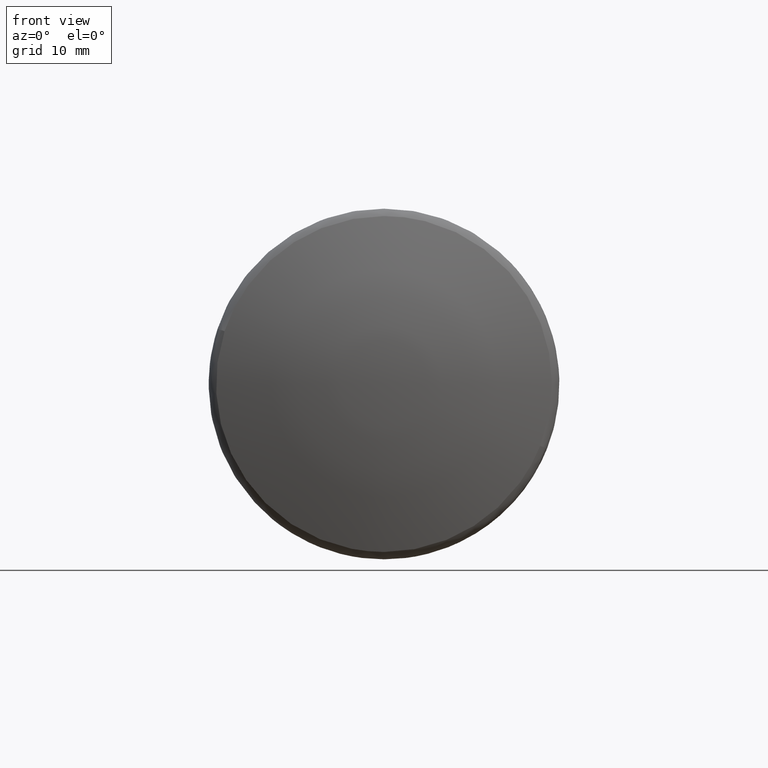
[diagram: clean part render]
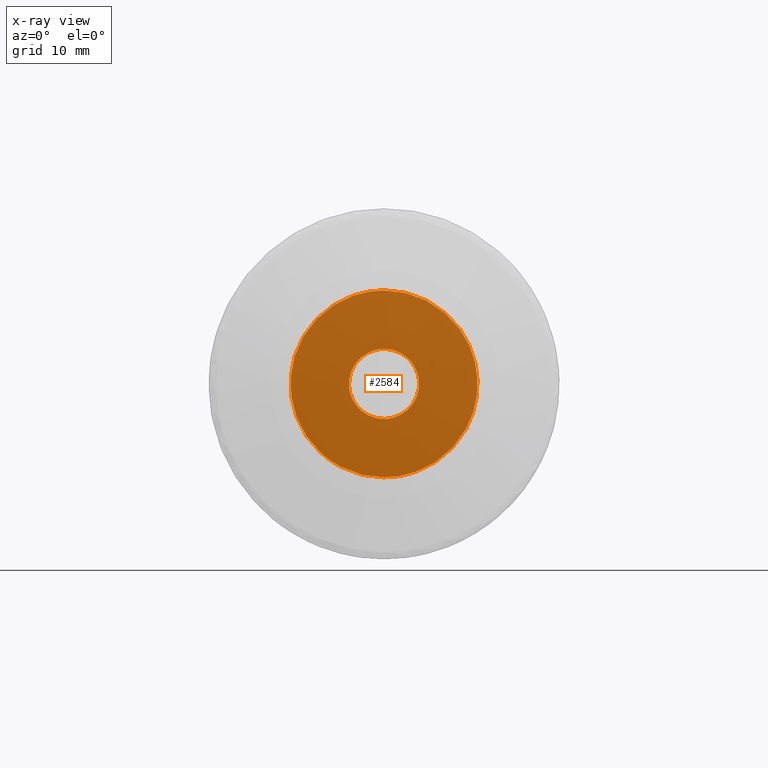
[diagram: x-ray — body ghosted, one internal face saturated and labeled with its STEP entity id]
A machine part, front view, then the same camera in x-ray: the body is ghosted and one INTERNAL B-rep face — a face not visible from any outside direction — is saturated and labeled: STEP entity #2584.
In plain terms, the highlighted face is a freeform B-spline surface patch.
Its self-contained STEP definition (entity closure, byte-faithful):
#1480=CARTESIAN_POINT('',(2.775558E-017,-2.990752001195804,0.235377287229016));
#1481=VERTEX_POINT('',#1480);
#1487=CARTESIAN_POINT('',(0.0,0.0,-3.0));
#1488=VERTEX_POINT('',#1487);
#1489=CARTESIAN_POINT('',(2.775558E-017,-2.990752001195804,0.235377287229016));
#1490=CARTESIAN_POINT('',(0.0,-3.0,0.117870321068700));
#1491=CARTESIAN_POINT('',(0.0,-3.0,0.0));
#1492=CARTESIAN_POINT('',(0.0,-3.0,-3.0));
#1493=CARTESIAN_POINT('',(0.0,0.0,-3.0));
#1501=(BOUNDED_CURVE()B_SPLINE_CURVE(2,(#1489,#1490,#1491,#1492,#1493),.UNSPECIFIED.,.F.,.U.)B_SPLINE_CURVE_WITH_KNOTS((3,2,3),(0.736331300627553,0.750000000000000,1.0),.UNSPECIFIED.)CURVE()GEOMETRIC_REPRESENTATION_ITEM()RATIONAL_B_SPLINE_CURVE((0.969723356160935,0.983986122575243,1.0,0.707106781186548,1.0))REPRESENTATION_ITEM(''));
#1502=EDGE_CURVE('',#1481,#1488,#1501,.T.);
#1504=CARTESIAN_POINT('',(2.775558E-017,2.990752001195804,-0.235377287229015));
#1505=VERTEX_POINT('',#1504);
#1506=CARTESIAN_POINT('',(0.0,0.0,-3.0));
#1507=CARTESIAN_POINT('',(0.0,2.773171474890023,-3.0));
#1508=CARTESIAN_POINT('',(2.775558E-017,2.990752001195804,-0.235377287229015));
#1516=(BOUNDED_CURVE()B_SPLINE_CURVE(2,(#1506,#1507,#1508),.UNSPECIFIED.,.F.,.U.)B_SPLINE_CURVE_WITH_KNOTS((3,3),(0.0,0.236331300627554),.UNSPECIFIED.)CURVE()GEOMETRIC_REPRESENTATION_ITEM()RATIONAL_B_SPLINE_CURVE((1.0,0.723120658611305,0.969723356160936))REPRESENTATION_ITEM(''));
#1517=EDGE_CURVE('',#1488,#1505,#1516,.T.);
#1547=CARTESIAN_POINT('',(0.0,0.0,3.0));
#1548=VERTEX_POINT('',#1547);
#1549=CARTESIAN_POINT('',(2.775558E-017,2.990752001195804,-0.235377287229015));
#1550=CARTESIAN_POINT('',(0.0,3.000000000000000,-0.117870321068699));
#1551=CARTESIAN_POINT('',(0.0,3.0,0.0));
#1552=CARTESIAN_POINT('',(0.0,3.0,3.0));
#1553=CARTESIAN_POINT('',(0.0,0.0,3.0));
#1561=(BOUNDED_CURVE()B_SPLINE_CURVE(2,(#1549,#1550,#1551,#1552,#1553),.UNSPECIFIED.,.F.,.U.)B_SPLINE_CURVE_WITH_KNOTS((3,2,3),(0.236331300627553,0.250000000000000,0.500000000000000),.UNSPECIFIED.)CURVE()GEOMETRIC_REPRESENTATION_ITEM()RATIONAL_B_SPLINE_CURVE((0.969723356160935,0.983986122575243,1.0,0.707106781186548,1.0))REPRESENTATION_ITEM(''));
#1562=EDGE_CURVE('',#1505,#1548,#1561,.T.);
#1564=CARTESIAN_POINT('',(0.0,0.0,3.0));
#1565=CARTESIAN_POINT('',(0.0,-2.773171474890005,3.000000000000001));
#1566=CARTESIAN_POINT('',(2.775558E-017,-2.990752001195804,0.235377287229016));
#1574=(BOUNDED_CURVE()B_SPLINE_CURVE(2,(#1564,#1565,#1566),.UNSPECIFIED.,.F.,.U.)B_SPLINE_CURVE_WITH_KNOTS((3,3),(0.500000000000000,0.736331300627552),.UNSPECIFIED.)CURVE()GEOMETRIC_REPRESENTATION_ITEM()RATIONAL_B_SPLINE_CURVE((1.0,0.723120658611306,0.969723356160933))REPRESENTATION_ITEM(''));
#1575=EDGE_CURVE('',#1548,#1481,#1574,.T.);
#1878=CARTESIAN_POINT('',(1.387779E-017,5.404720894560994,-5.898219396724295));
#1879=VERTEX_POINT('',#1878);
#1885=CARTESIAN_POINT('',(0.0,0.0,-8.0));
#1886=VERTEX_POINT('',#1885);
#1887=CARTESIAN_POINT('',(0.0,0.0,-8.0));
#1888=CARTESIAN_POINT('',(0.0,3.111029256501661,-8.0));
#1889=CARTESIAN_POINT('',(1.387779E-017,5.404720894560994,-5.898219396724295));
#1897=(BOUNDED_CURVE()B_SPLINE_CURVE(2,(#1887,#1888,#1889),.UNSPECIFIED.,.F.,.U.)B_SPLINE_CURVE_WITH_KNOTS((3,3),(0.500000000000000,0.618415189469593),.UNSPECIFIED.)CURVE()GEOMETRIC_REPRESENTATION_ITEM()RATIONAL_B_SPLINE_CURVE((1.0,0.861267975999384,0.853959783259033))REPRESENTATION_ITEM(''));
#1898=EDGE_CURVE('',#1886,#1879,#1897,.T.);
#1900=CARTESIAN_POINT('',(1.280419E-016,-6.999573736975949,-3.873753670616348));
#1901=VERTEX_POINT('',#1900);
#1902=CARTESIAN_POINT('',(1.280419E-016,-6.999573736975948,-3.873753670616349));
#1903=CARTESIAN_POINT('',(0.0,-4.715997270045071,-8.0));
#1904=CARTESIAN_POINT('',(0.0,0.0,-8.0));
#1912=(BOUNDED_CURVE()B_SPLINE_CURVE(2,(#1902,#1903,#1904),.UNSPECIFIED.,.F.,.U.)B_SPLINE_CURVE_WITH_KNOTS((3,3),(0.332484196911658,0.500000000000000),.UNSPECIFIED.)CURVE()GEOMETRIC_REPRESENTATION_ITEM()RATIONAL_B_SPLINE_CURVE((0.870495210820737,0.803743028925340,1.0))REPRESENTATION_ITEM(''));
#1913=EDGE_CURVE('',#1901,#1886,#1912,.T.);
#1963=CARTESIAN_POINT('',(0.0,0.0,8.0));
#1964=VERTEX_POINT('',#1963);
#1965=CARTESIAN_POINT('',(0.0,0.0,8.0));
#1966=CARTESIAN_POINT('',(0.0,-8.0,8.0));
#1967=CARTESIAN_POINT('',(0.0,-8.0,0.0));
#1968=CARTESIAN_POINT('',(0.0,-8.0,-2.066060670013521));
#1969=CARTESIAN_POINT('',(1.280419E-016,-6.999573736975948,-3.873753670616349));
#1977=(BOUNDED_CURVE()B_SPLINE_CURVE(2,(#1965,#1966,#1967,#1968,#1969),.UNSPECIFIED.,.F.,.U.)B_SPLINE_CURVE_WITH_KNOTS((3,2,3),(0.0,0.250000000000000,0.332484196911658),.UNSPECIFIED.)CURVE()GEOMETRIC_REPRESENTATION_ITEM()RATIONAL_B_SPLINE_CURVE((1.0,0.707106781186548,1.0,0.903363752261207,0.870495210820737))REPRESENTATION_ITEM(''));
#1978=EDGE_CURVE('',#1964,#1901,#1977,.T.);
#1980=CARTESIAN_POINT('',(1.387779E-017,5.404720894560994,-5.898219396724295));
#1981=CARTESIAN_POINT('',(0.0,8.0,-3.520084867484289));
#1982=CARTESIAN_POINT('',(0.0,8.0,0.0));
#1983=CARTESIAN_POINT('',(0.0,8.0,8.0));
#1984=CARTESIAN_POINT('',(0.0,0.0,8.0));
#1992=(BOUNDED_CURVE()B_SPLINE_CURVE(2,(#1980,#1981,#1982,#1983,#1984),.UNSPECIFIED.,.F.,.U.)B_SPLINE_CURVE_WITH_KNOTS((3,2,3),(0.618415189469593,0.750000000000000,1.0),.UNSPECIFIED.)CURVE()GEOMETRIC_REPRESENTATION_ITEM()RATIONAL_B_SPLINE_CURVE((0.853959783259033,0.845838805187163,1.0,0.707106781186548,1.0))REPRESENTATION_ITEM(''));
#1993=EDGE_CURVE('',#1879,#1964,#1992,.T.);
#2567=CARTESIAN_POINT('',(0.0,-8.797177061247808,8.799199968988896));
#2568=CARTESIAN_POINT('',(0.0,8.795559152770023,8.799199968988896));
#2569=CARTESIAN_POINT('',(0.0,-8.797177061247808,-8.799200398142338));
#2570=CARTESIAN_POINT('',(0.0,8.795559152770023,-8.799200398142338));
#2571=B_SPLINE_SURFACE_WITH_KNOTS('',1,1,((#2567,#2569),(#2568,#2570)),.UNSPECIFIED.,.F.,.F.,.U.,(2,2),(2,2),(0.0,17.592736214017830),(0.0,17.598400367131230),.UNSPECIFIED.);
#2572=ORIENTED_EDGE('',*,*,#1978,.T.);
#2573=ORIENTED_EDGE('',*,*,#1913,.T.);
#2574=ORIENTED_EDGE('',*,*,#1898,.T.);
#2575=ORIENTED_EDGE('',*,*,#1993,.T.);
#2576=EDGE_LOOP('',(#2572,#2573,#2574,#2575));
#2577=FACE_OUTER_BOUND('',#2576,.T.);
#2578=ORIENTED_EDGE('',*,*,#1575,.F.);
#2579=ORIENTED_EDGE('',*,*,#1562,.F.);
#2580=ORIENTED_EDGE('',*,*,#1517,.F.);
#2581=ORIENTED_EDGE('',*,*,#1502,.F.);
#2582=EDGE_LOOP('',(#2578,#2579,#2580,#2581));
#2583=FACE_BOUND('',#2582,.T.);
#2584=ADVANCED_FACE('',(#2577,#2583),#2571,.F.);